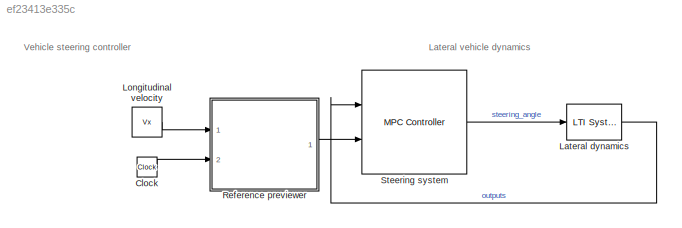
MODEL slx_ef23413e335c
KIND model
CONFIG AbsTol = auto
CONFIG EnableMultiTasking = off
CONFIG FixedStep = auto
CONFIG MaxStep = auto
CONFIG MinStep = auto
CONFIG RelTol = 1e-3
CONFIG SampleTimeConstraint = Unconstrained
CONFIG Solver = VariableStepAuto
CONFIG SolverName = VariableStepAuto
CONFIG StartTime = 0.0
CONFIG StopTime = 10
BLOCK [Clock] Clock
BLOCK [Reference] Lateral dynamics  REF=cstblocks/LTI System
  Ports = [1, 1]
  SourceBlock = cstblocks/LTI System
  SourceProductBaseCode = CT
  SourceProductName = Control System Toolbox
  SourceType = LTI Block
BLOCK [Constant] Longitudinal velocity
  SampleTime = Ts
  Value = Vx
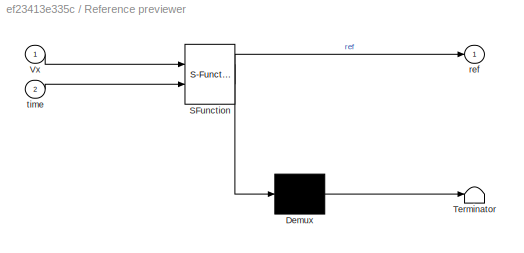
BLOCK [SubSystem] Reference previewer
  ErrorFcn = Stateflow.Translate.translate
  PermitHierarchicalResolution = ExplicitOnly
  Ports = [2, 1]
  RequestExecContextInheritance = off
  SFBlockType = MATLAB Function
  SystemSampleTime = Ts
  TreatAsAtomicUnit = on
  Variant = off
BLOCK [Demux] Reference previewer/ Demux 
  Outputs = 1
  Ports = [1, 1]
BLOCK [S-Function] Reference previewer/ SFunction 
  EnableBusSupport = on
  FunctionName = sf_sfun
  PortCounts = [2 2]
  Ports = [2, 2]
  SFcnIsStateOwnerBlock = off
  SFunctionDeploymentMode = off
  Tag = Stateflow S-Function mpcVehicleSteering 2
BLOCK [Terminator] Reference previewer/ Terminator 
BLOCK [Inport] Reference previewer/Vx
  IconDisplay = Port number
BLOCK [Outport] Reference previewer/ref
  IconDisplay = Port number
BLOCK [Inport] Reference previewer/time
  IconDisplay = Port number
  Port = 2
BLOCK [Reference] Steering system  REF=mpclib/MPC Controller  (lib defined in mdl_ae329e0e0455)
  Ports = [2, 1]
  SCDEnableBlockLinearizationSpecification = on
  SourceBlock = mpclib/MPC Controller
  SourceProductBaseCode = MP
  SourceProductName = Model Predictive Control Toolbox
  SourceType = MPC
ANNOTATION (root): Lateral vehicle dynamics
ANNOTATION (root): Vehicle steering controller
LINE Clock:1 -> Reference previewer:2
LINE Lateral dynamics:1 -> Steering system:1
LINE Longitudinal velocity:1 -> Reference previewer:1
LINE Reference previewer:1 -> Steering system:2
LINE Steering system:1 -> Lateral dynamics:1
CHART Reference previewer states=1 transitions=1
  STATE_LABEL 'eML_blk_kernel()'
  STATE_LABEL 'SCRIPT:\nfunction ref = previewer(Vx,time)\n% Get previewed reference trajectory\n\n% Previw horizon is 10 sampling times (i.e. 10*0.1 = 1 seconds).\n% Reference contains 2 signals (i.e. Y position and yaw angle).\nref = zeros(10,2); \n\n%% Previewing sequence\nfor ct = 1:10\n   ref(ct,:) = doubleLaneChange(Vx,time + (ct-1)*0.1);\nend\n\n'
